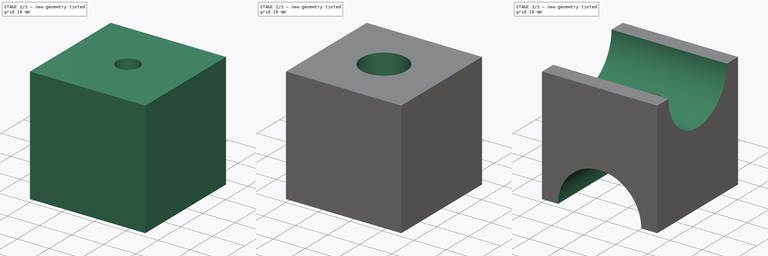
[diagram: build sequence overview — one tinted view per stage of 3, left to right]
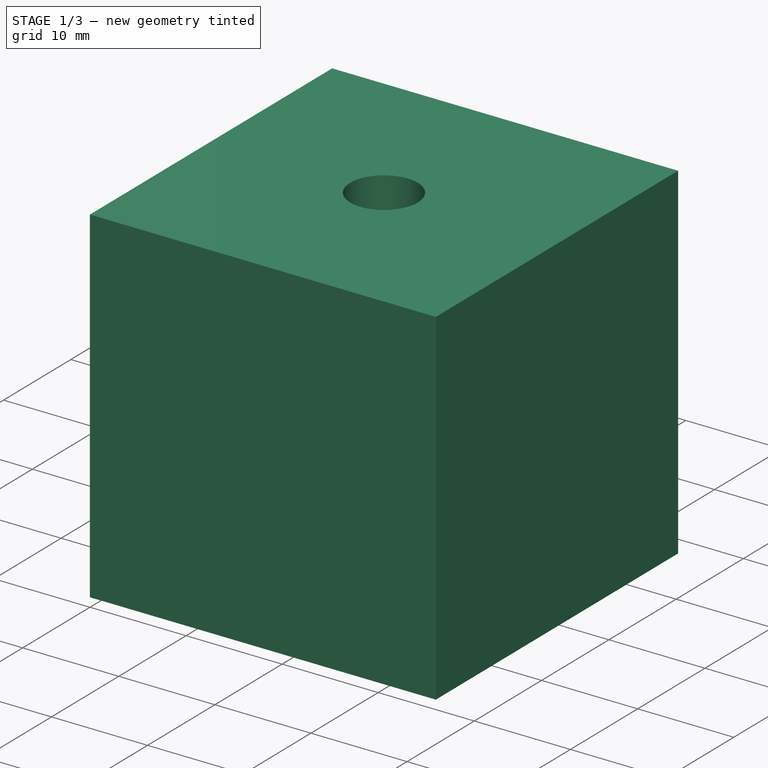
[diagram: stage 1 of 3 — iso view after this stage's code; geometry added in this stage tinted green]
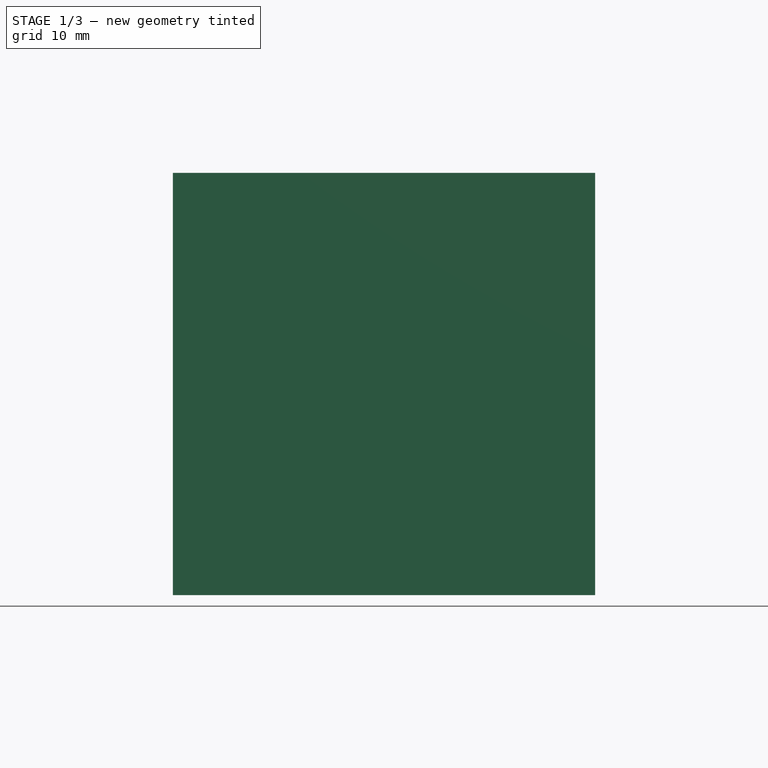
[diagram: stage 1 of 3 — front view after this stage's code; geometry added in this stage tinted green]
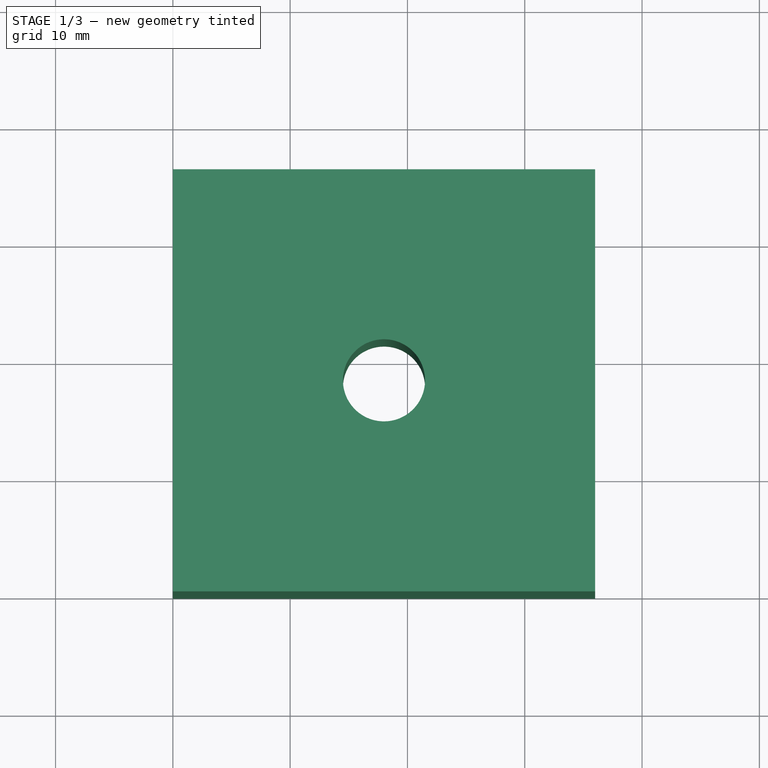
[diagram: stage 1 of 3 — top view after this stage's code; geometry added in this stage tinted green]
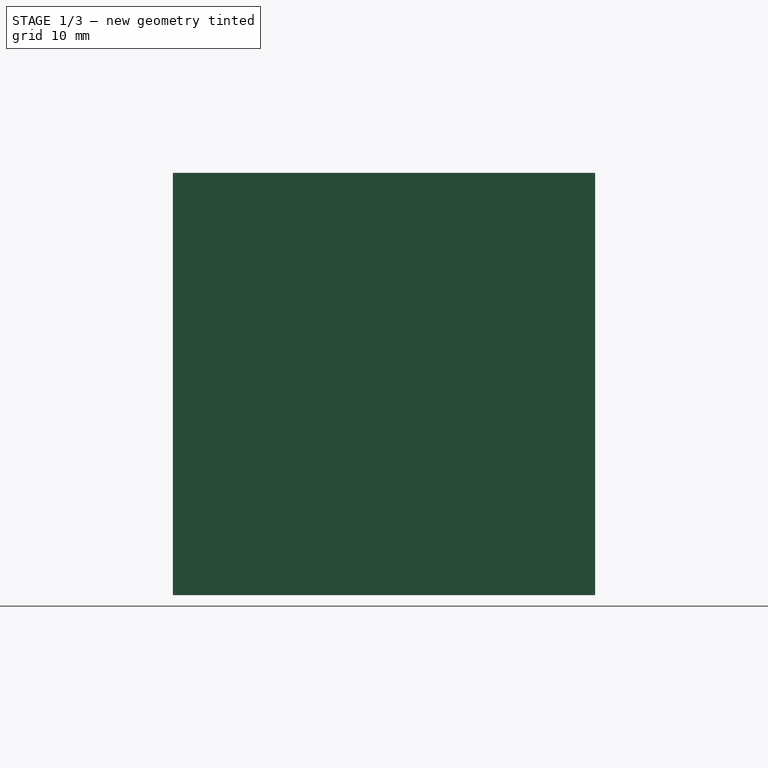
[diagram: stage 1 of 3 — right view after this stage's code; geometry added in this stage tinted green]
FCSTD DOCUMENT  (FreeCAD 0.16RUnknown)
Label: MR-HANGER-201705
License: All rights reserved
LicenseURL: http://www.tomek.cedro.info
objects: Sketcher::SketchObject×5, PartDesign::Pocket×5, Part::Box×1
note: 16 computed .brp shape members not serialized (recipe doc carries the construction recipe); baked Part::Feature solids carry a one-line shape summary decoded from their .brp

FEATURE [Part::Box] Box  label="Cube"
  Height = 36
  Length = 36
  Width = 36
FEATURE [Sketcher::SketchObject] Sketch
  Placement = pos=(0,0,36) rot=(0,0,1;0rad)
  Support = -> Box [Face6]
  sketch-geometry (1):
    g0: Circle CenterX=18 CenterY=18 CenterZ=0 NormalX=0 NormalY=0 NormalZ=1 Radius=3.5
  constraints (3):
    c: DistanceX(g-1,g0) = 18
    c: DistanceY(g-1,g0) = 18
    c: Radius(g0) = 3.5
FEATURE [PartDesign::Pocket] Pocket
  Length = 5
  Sketch = -> Sketch
  Type = 1
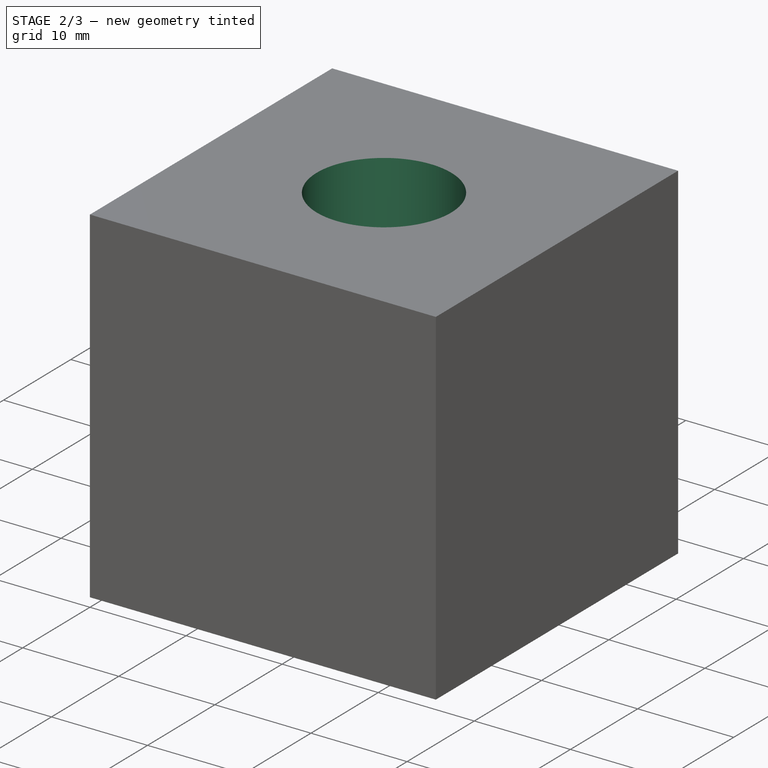
[diagram: stage 2 of 3 — iso view after this stage's code; geometry added in this stage tinted green]
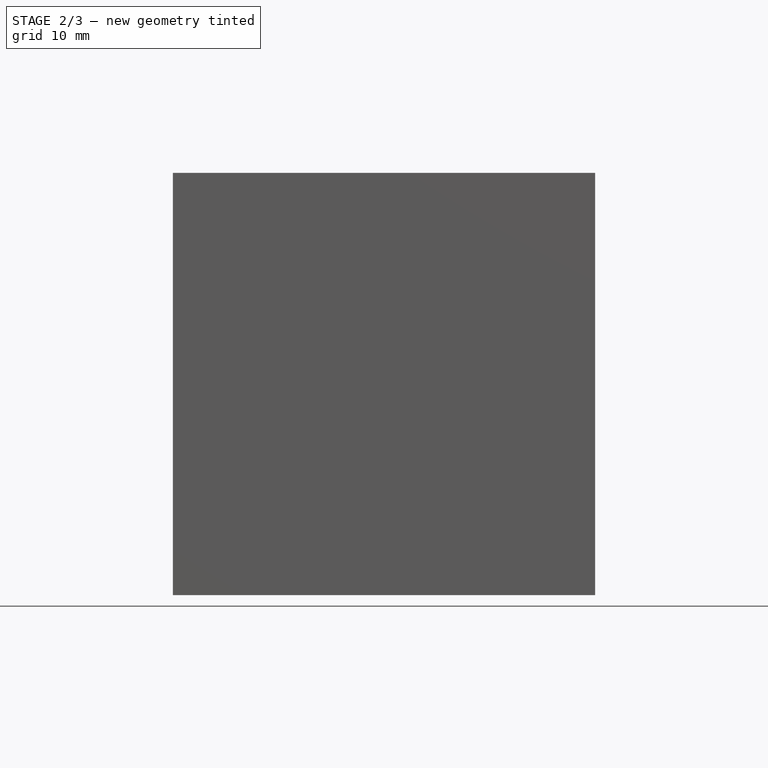
[diagram: stage 2 of 3 — front view after this stage's code; geometry added in this stage tinted green]
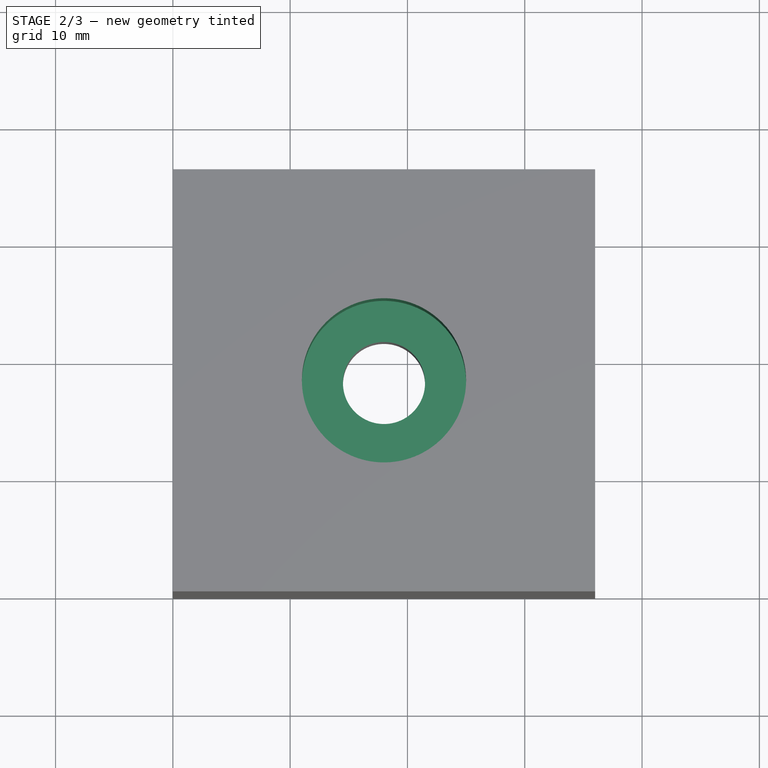
[diagram: stage 2 of 3 — top view after this stage's code; geometry added in this stage tinted green]
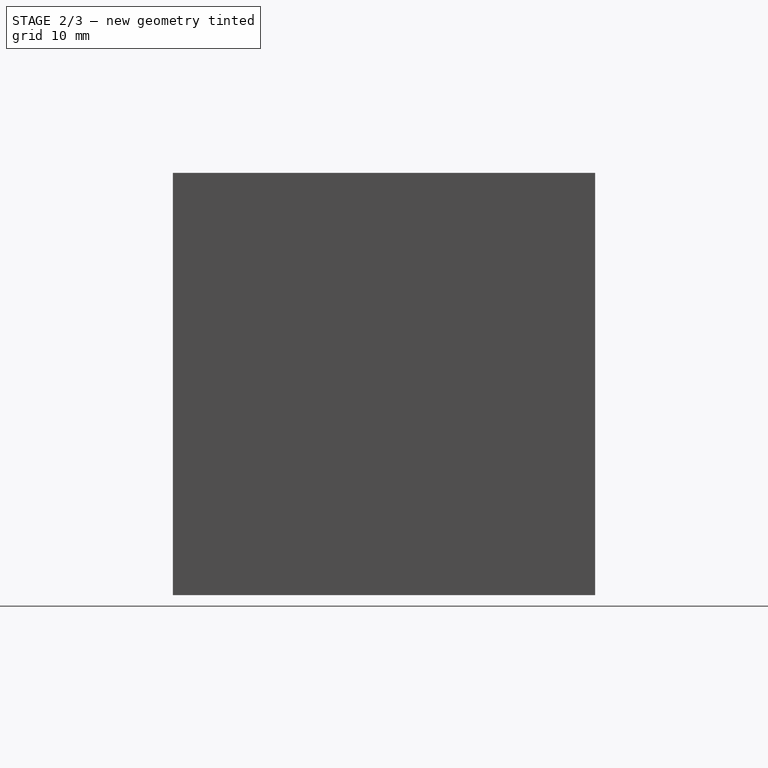
[diagram: stage 2 of 3 — right view after this stage's code; geometry added in this stage tinted green]
FEATURE [Sketcher::SketchObject] Sketch004
  Placement = pos=(0,0,36) rot=(0,0,1;0rad)
  Support = -> Pocket [Face3]
  sketch-geometry (1):
    g0: Circle CenterX=18 CenterY=18 CenterZ=0 NormalX=0 NormalY=0 NormalZ=1 Radius=7
  constraints (3):
    c: DistanceX(g-1,g0) = 18
    c: DistanceY(g-1,g0) = 18
    c: Radius(g0) = 7
FEATURE [PartDesign::Pocket] Pocket001
  Length = 13
  Sketch = -> Sketch004
  Type = 0
FEATURE [Sketcher::SketchObject] Sketch001
  Placement = pos=(0,0,0) rot=(1,0,0;3.14159rad)
  Support = -> Pocket001 [Face5]
  sketch-geometry (1):
    g0: Circle CenterX=18 CenterY=-18 CenterZ=0 NormalX=0 NormalY=0 NormalZ=1 Radius=7
  constraints (3):
    c: DistanceX(g-1,g0) = 18
    c: Radius(g0) = 7
    c: DistanceY(g-1,g0) = -18
FEATURE [PartDesign::Pocket] Pocket002
  Length = 13
  Sketch = -> Sketch001
  Type = 0
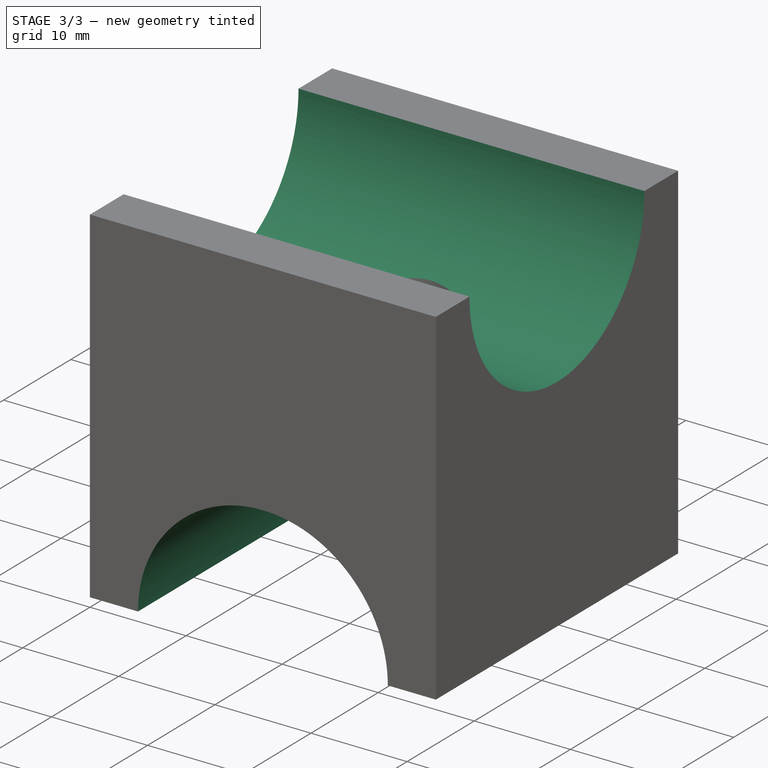
[diagram: stage 3 of 3 — iso view after this stage's code; geometry added in this stage tinted green]
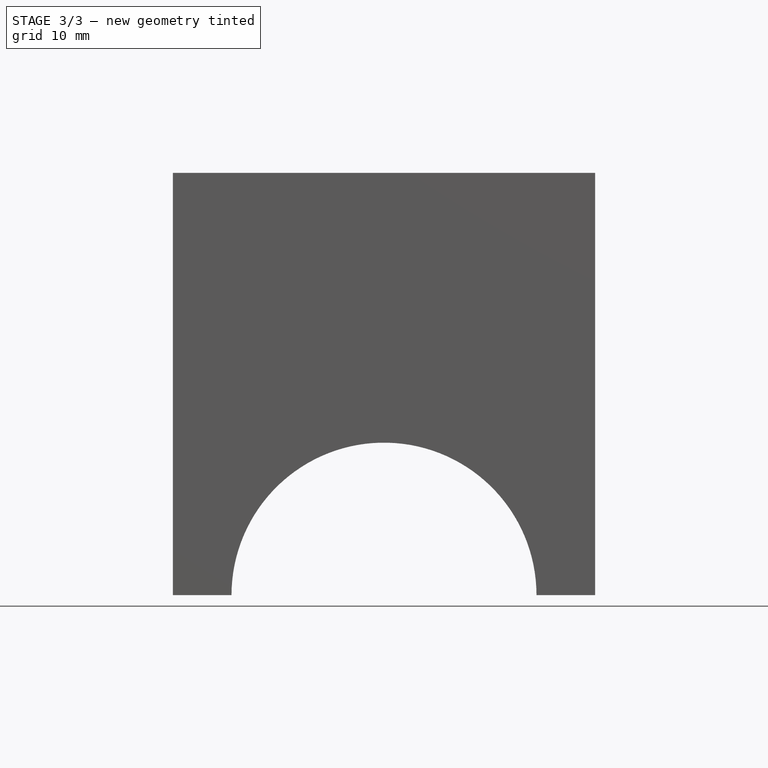
[diagram: stage 3 of 3 — front view after this stage's code; geometry added in this stage tinted green]
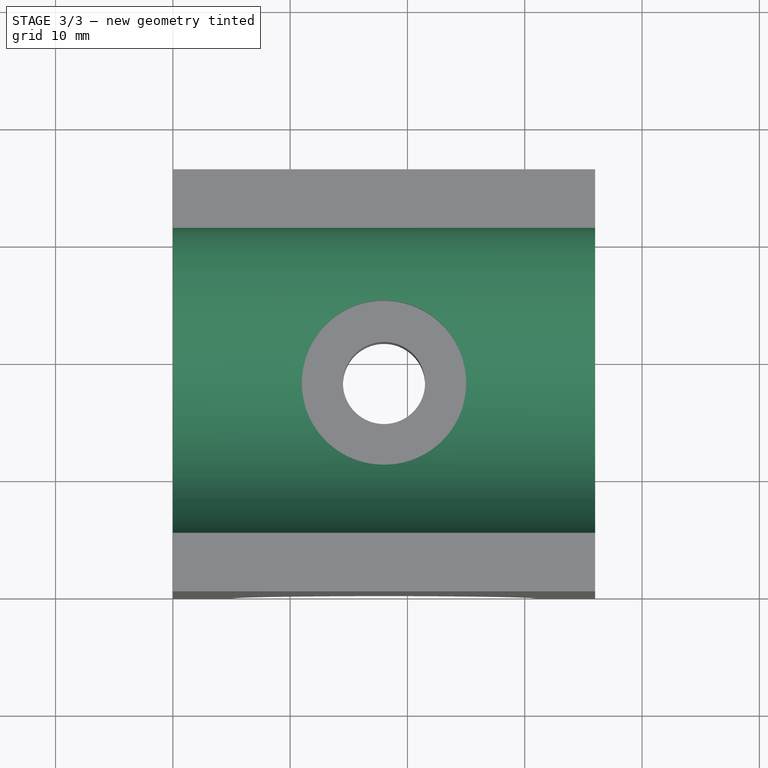
[diagram: stage 3 of 3 — top view after this stage's code; geometry added in this stage tinted green]
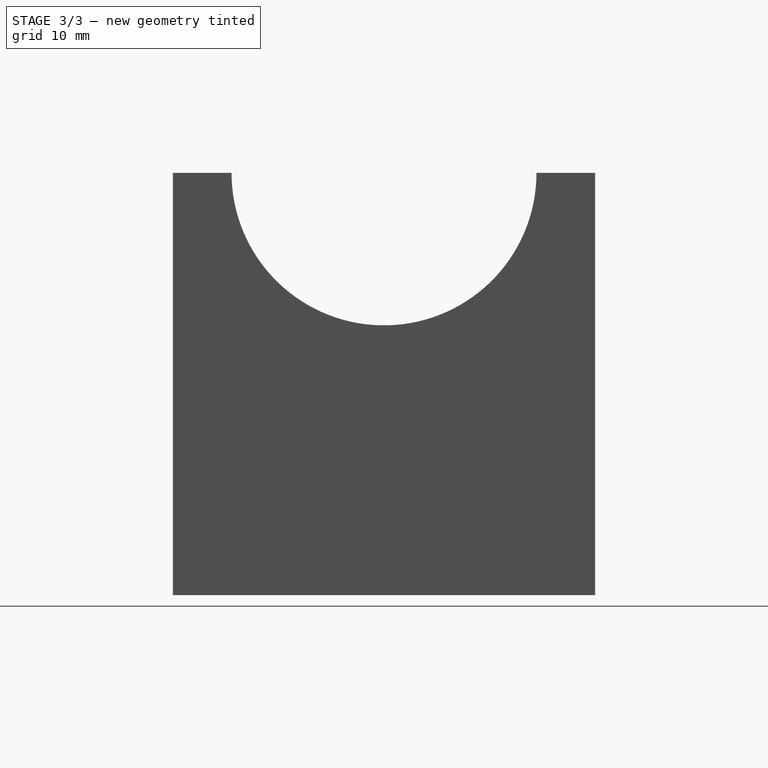
[diagram: stage 3 of 3 — right view after this stage's code; geometry added in this stage tinted green]
FEATURE [Sketcher::SketchObject] Sketch003
  Placement = pos=(0,0,0) rot=(0.57735,-0.57735,-0.57735;2.0944rad)
  Support = -> Pocket002 [Face1]
  sketch-geometry (1):
    g0: Circle CenterX=-18 CenterY=36 CenterZ=0 NormalX=0 NormalY=0 NormalZ=1 Radius=13
  constraints (3):
    c: DistanceY(g-1,g0) = 36
    c: DistanceX(g-1,g0) = -18
    c: Radius(g0) = 13
FEATURE [PartDesign::Pocket] Pocket003
  Length = 5
  Sketch = -> Sketch003
  Type = 1
FEATURE [Sketcher::SketchObject] Sketch002
  Placement = pos=(0,0,0) rot=(1,0,0;1.5708rad)
  Support = -> Pocket003 [Face7]
  sketch-geometry (1):
    g0: Circle CenterX=18 CenterY=0 CenterZ=0 NormalX=0 NormalY=0 NormalZ=1 Radius=13
  constraints (3):
    c: DistanceY(g-1,g0) = 0
    c: DistanceX(g-1,g0) = 18
    c: Radius(g0) = 13
FEATURE [PartDesign::Pocket] Pocket004
  Length = 13
  Sketch = -> Sketch002
  Type = 1
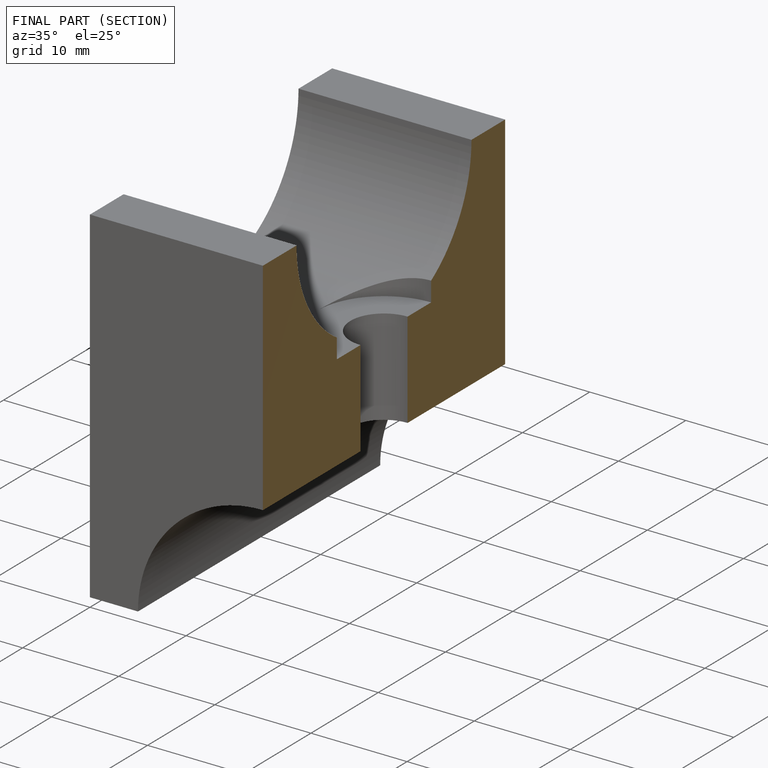
[diagram: finished part — half-section view (interior)]
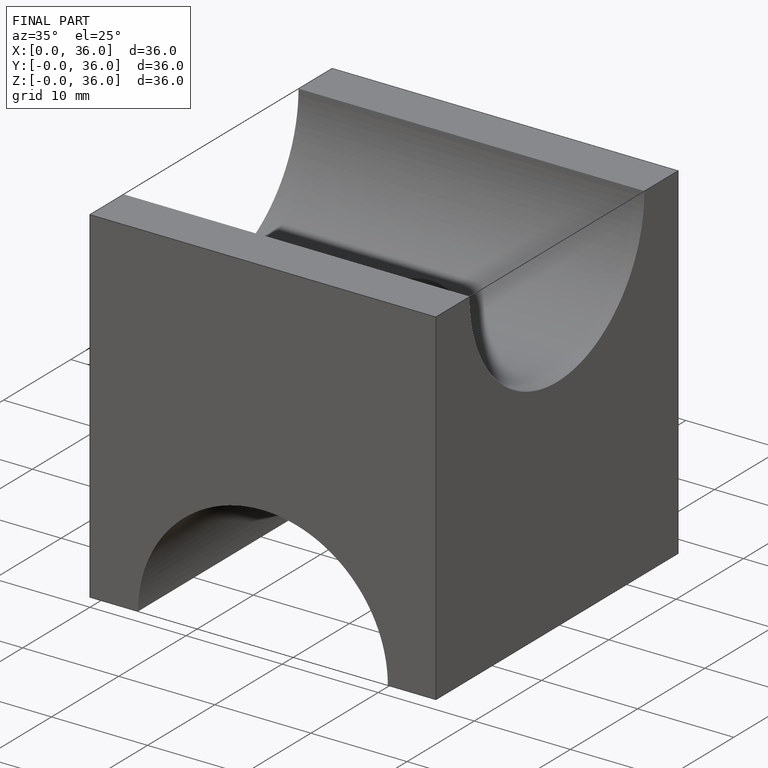
[diagram: finished part — iso view with bounding-box wireframe]
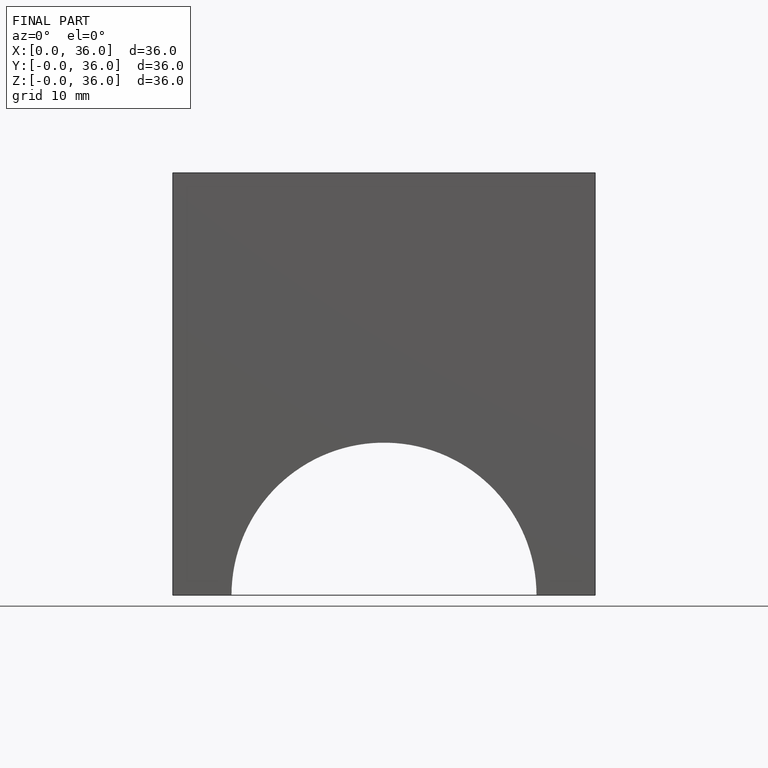
[diagram: finished part — front view with bounding-box wireframe]
